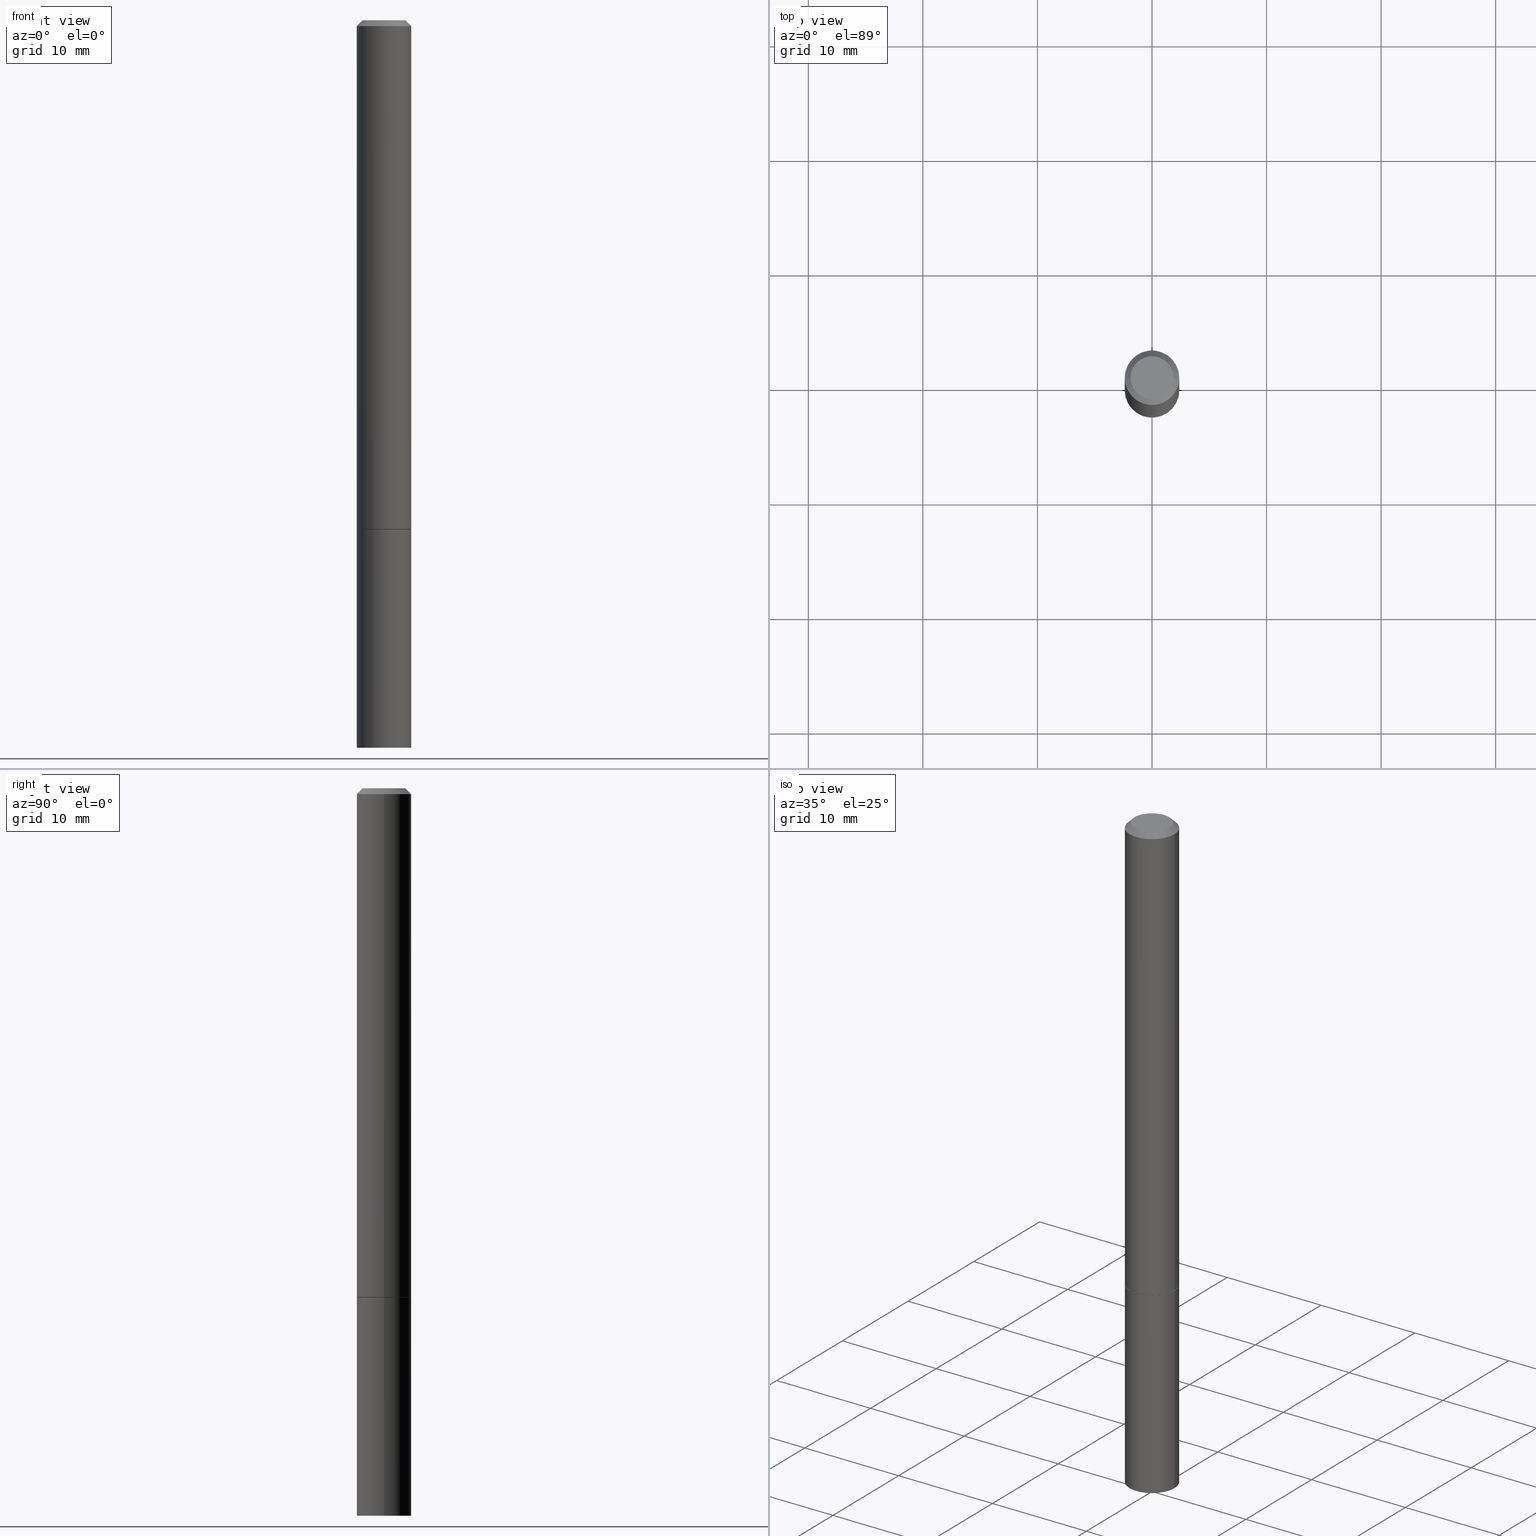
[diagram: canonical four-view strip — front | top / right | iso, engineering-drawing reading convention]
A machine part, canonical four-view strip (front | top / right | iso — engineering-drawing reading convention). The complete STEP part file that produces these views, byte-faithful:
ISO-10303-21;
HEADER;
FILE_DESCRIPTION (( 'STEP AP203' ),
    '1' );
FILE_NAME ('31748.STEP',
    '2023-03-21T20:30:02',
    ( '' ),
    ( '' ),
    'SwSTEP 2.0',
    'SolidWorks 2022',
    '' );
FILE_SCHEMA (( 'CONFIG_CONTROL_DESIGN' ));
ENDSEC;

DATA;
#1 = DIRECTION ( 'NONE',  ( -2.445468806185136597E-29, 3.491481338843145583E-15, 1.000000000000000000 ) ) ;
#2 = UNCERTAINTY_MEASURE_WITH_UNIT (LENGTH_MEASURE( 1.000000000000000082E-05 ), #125, 'distance_accuracy_value', 'NONE');
#3 = CIRCLE ( 'NONE', #142, 0.09375000000000001388 ) ;
#4 = LOCAL_TIME ( 16, 30, 2.000000000000000000, #368 ) ;
#5 = CONICAL_SURFACE ( 'NONE', #363, 751.2258538476485228, 1.518436449235072372 ) ;
#6 = CARTESIAN_POINT ( 'NONE',  ( 5.149934974793607105E-16, 0.07374999999999978795, -2.574967487396812920E-16 ) ) ;
#7 = EDGE_CURVE ( 'NONE', #52, #260, #253, .T. ) ;
#8 = LINE ( 'NONE', #119, #269 ) ;
#9 = CC_DESIGN_PERSON_AND_ORGANIZATION_ASSIGNMENT ( #370, #128, ( #81 ) ) ;
#10 = PERSON_AND_ORGANIZATION_ROLE ( 'design_owner' ) ;
#11 = CONICAL_SURFACE ( 'NONE', #234, 0.09374999999999975020, 0.7853981633974467247 ) ;
#12 = ADVANCED_FACE ( 'NONE', ( #316 ), #5, .F. ) ;
#13 = APPROVAL_STATUS ( 'not_yet_approved' ) ;
#14 = DIRECTION ( 'NONE',  ( 1.000000000000000000, -6.982962677686265922E-15, 4.876176775795935793E-29 ) ) ;
#15 = CALENDAR_DATE ( 2023, 21, 3 ) ;
#16 = CARTESIAN_POINT ( 'NONE',  ( 1.023799563225607519E-27, -1.461714441287113679E-13, -41.86516551084969961 ) ) ;
#17 = VERTEX_POINT ( 'NONE', #369 ) ;
#18 = DIRECTION ( 'NONE',  ( -2.445468806185136597E-29, 3.491481338843145583E-15, 1.000000000000000000 ) ) ;
#19 = CARTESIAN_POINT ( 'NONE',  ( 4.890937612370278413E-31, -6.982962677686297772E-17, -0.02000000000000002123 ) ) ;
#20 = MANIFOLD_SOLID_BREP ( 'Body-Move/Copy2[1]', #199 ) ;
#21 = ORIENTED_EDGE ( 'NONE', *, *, #107, .T. ) ;
#22 = CARTESIAN_POINT ( 'NONE',  ( 0.09374999999999984734, -9.371875034398942871E-15, -2.500000000000000000 ) ) ;
#23 = EDGE_LOOP ( 'NONE', ( #235, #319 ) ) ;
#24 = CARTESIAN_POINT ( 'NONE',  ( 0.000000000000000000, 0.000000000000000000, 0.000000000000000000 ) ) ;
#25 = AXIS2_PLACEMENT_3D ( 'NONE', #289, #104, #57 ) ;
#26 = ORIENTED_EDGE ( 'NONE', *, *, #186, .T. ) ;
#27 = CARTESIAN_POINT ( 'NONE',  ( 3.848130141995154331E-19, -8.711548898666276345E-15, -2.495086770692215516 ) ) ;
#28 = CC_DESIGN_PERSON_AND_ORGANIZATION_ASSIGNMENT ( #68, #280, ( #218 ) ) ;
#29 = CARTESIAN_POINT ( 'NONE',  ( -0.09374999999999975020, 5.848231242562228254E-16, -0.02000000000000002123 ) ) ;
#30 = CLOSED_SHELL ( 'NONE', ( #64, #82, #331, #180, #190, #216, #93, #366 ) ) ;
#31 = AXIS2_PLACEMENT_3D ( 'NONE', #210, #389, #236 ) ;
#32 = LINE ( 'NONE', #215, #111 ) ;
#33 = CIRCLE ( 'NONE', #41, 0.09374999999999975020 ) ;
#34 = APPROVAL_ROLE ( '' ) ;
#35 = PLANE ( 'NONE',  #224 ) ;
#36 = EDGE_CURVE ( 'NONE', #17, #264, #378, .T. ) ;
#37 = EDGE_CURVE ( 'NONE', #264, #295, #261, .T. ) ;
#38 = DATE_AND_TIME ( #155, #116 ) ;
#39 = DIRECTION ( 'NONE',  ( 2.438088387897960049E-29, -3.491481338843145188E-15, -1.000000000000000000 ) ) ;
#40 = APPROVAL_PERSON_ORGANIZATION ( #317, #168, #343 ) ;
#41 = AXIS2_PLACEMENT_3D ( 'NONE', #246, #217, #333 ) ;
#42 = CALENDAR_DATE ( 2023, 21, 3 ) ;
#43 = DIRECTION ( 'NONE',  ( -2.445468806185136877E-29, 3.491481338843145188E-15, 1.000000000000000000 ) ) ;
#44 = CALENDAR_DATE ( 2023, 21, 3 ) ;
#45 = DIRECTION ( 'NONE',  ( 1.000000000000000000, -6.982962677686272233E-15, 0.000000000000000000 ) ) ;
#46 = ORIENTED_EDGE ( 'NONE', *, *, #322, .F. ) ;
#47 = ORIENTED_EDGE ( 'NONE', *, *, #307, .T. ) ;
#48 = EDGE_LOOP ( 'NONE', ( #375, #192, #167, #50 ) ) ;
#49 = DIRECTION ( 'NONE',  ( -2.445468806185136877E-29, 3.491481338843145188E-15, 1.000000000000000000 ) ) ;
#50 = ORIENTED_EDGE ( 'NONE', *, *, #276, .F. ) ;
#51 = DIRECTION ( 'NONE',  ( 1.000000000000000000, -6.982962677686272233E-15, 0.000000000000000000 ) ) ;
#52 = VERTEX_POINT ( 'NONE', #342 ) ;
#53 = CARTESIAN_POINT ( 'NONE',  ( 4.890937612370278413E-31, -6.982962677686297772E-17, -0.02000000000000002123 ) ) ;
#54 = AXIS2_PLACEMENT_3D ( 'NONE', #383, #388, #198 ) ;
#55 = CARTESIAN_POINT ( 'NONE',  ( -0.09375000000000001388, -6.753264030266591277E-15, -1.750000000000000222 ) ) ;
#56 = AXIS2_PLACEMENT_3D ( 'NONE', #195, #99, #132 ) ;
#57 = DIRECTION ( 'NONE',  ( -1.000000000000000000, 6.982962677686266711E-15, 0.000000000000000000 ) ) ;
#58 = VERTEX_POINT ( 'NONE', #320 ) ;
#59 = DIRECTION ( 'NONE',  ( 1.000000000000000000, 0.000000000000000000, 0.000000000000000000 ) ) ;
#60 = ORIENTED_EDGE ( 'NONE', *, *, #186, .F. ) ;
#61 = LOCAL_TIME ( 16, 30, 2.000000000000000000, #225 ) ;
#62 = AXIS2_PLACEMENT_3D ( 'NONE', #390, #179, #214 ) ;
#63 = ADVANCED_FACE ( 'NONE', ( #100 ), #258, .F. ) ;
#64 = ADVANCED_FACE ( 'NONE', ( #312 ), #154, .T. ) ;
#65 = FACE_OUTER_BOUND ( 'NONE', #326, .T. ) ;
#66 = DIRECTION ( 'NONE',  ( -0.7071067811865232589, 7.493145998870265808E-15, 0.7071067811865715536 ) ) ;
#67 = APPLICATION_PROTOCOL_DEFINITION ( 'international standard', 'config_control_design', 1994, #310 ) ;
#68 = PERSON_AND_ORGANIZATION ( #251, #208 ) ;
#69 = ORIENTED_EDGE ( 'NONE', *, *, #130, .F. ) ;
#70 = SHAPE_DEFINITION_REPRESENTATION ( #337, #110 ) ;
#71 = VECTOR ( 'NONE', #332, 39.37007874015748143 ) ;
#72 = APPROVAL_STATUS ( 'not_yet_approved' ) ;
#73 = FACE_OUTER_BOUND ( 'NONE', #137, .T. ) ;
#74 = VERTEX_POINT ( 'NONE', #232 ) ;
#75 = EDGE_CURVE ( 'NONE', #133, #74, #256, .T. ) ;
#76 = DIRECTION ( 'NONE',  ( -2.445468806185136597E-29, 3.491481338843145583E-15, 1.000000000000000000 ) ) ;
#77 = LINE ( 'NONE', #173, #209 ) ;
#78 = EDGE_LOOP ( 'NONE', ( #106, #265, #372 ) ) ;
#79 = CIRCLE ( 'NONE', #306, 0.09375000000000001388 ) ;
#80 = CYLINDRICAL_SURFACE ( 'NONE', #174, 0.09374999999999988898 ) ;
#81 = PRODUCT_DEFINITION ( 'UNKNOWN', '', #226, #120 ) ;
#82 = ADVANCED_FACE ( 'NONE', ( #263 ), #223, .T. ) ;
#83 = ORIENTED_EDGE ( 'NONE', *, *, #252, .T. ) ;
#84 = DIRECTION ( 'NONE',  ( 1.000000000000000000, -6.982962677686266711E-15, 4.876176775795936914E-29 ) ) ;
#85 = CARTESIAN_POINT ( 'NONE',  ( 0.09375000000000001388, -6.546527510330875041E-16, 4.571415727308690506E-30 ) ) ;
#86 = CC_DESIGN_DATE_AND_TIME_ASSIGNMENT ( #134, #250, ( #81 ) ) ;
#87 = ORIENTED_EDGE ( 'NONE', *, *, #7, .T. ) ;
#88 = CONICAL_SURFACE ( 'NONE', #299, 0.09274999999999999911, 0.7853981633974141952 ) ;
#89 = APPROVAL_PERSON_ORGANIZATION ( #162, #335, #254 ) ;
#90 = CARTESIAN_POINT ( 'NONE',  ( 4.890937612370278413E-31, -6.982962677686297772E-17, -0.02000000000000002123 ) ) ;
#91 = AXIS2_PLACEMENT_3D ( 'NONE', #286, #352, #189 ) ;
#92 = CARTESIAN_POINT ( 'NONE',  ( 0.000000000000000000, 0.000000000000000000, 0.000000000000000000 ) ) ;
#93 = ADVANCED_FACE ( 'NONE', ( #73 ), #35, .F. ) ;
#94 = DATE_AND_TIME ( #346, #182 ) ;
#95 = CC_DESIGN_APPROVAL ( #275, ( #226 ) ) ;
#96 = DATE_AND_TIME ( #44, #4 ) ;
#97 = DIRECTION ( 'NONE',  ( -2.438088387897960049E-29, 3.491481338843145188E-15, 1.000000000000000000 ) ) ;
#98 = COORDINATED_UNIVERSAL_TIME_OFFSET ( 5, 0, .BEHIND. ) ;
#99 = DIRECTION ( 'NONE',  ( -2.445468806185136597E-29, 3.491481338843145583E-15, 1.000000000000000000 ) ) ;
#100 = FACE_OUTER_BOUND ( 'NONE', #23, .T. ) ;
#101 = AXIS2_PLACEMENT_3D ( 'NONE', #160, #39, #349 ) ;
#102 = CIRCLE ( 'NONE', #54, 0.09375000000000001388 ) ;
#103 = ORIENTED_EDGE ( 'NONE', *, *, #276, .T. ) ;
#104 = DIRECTION ( 'NONE',  ( 2.445468806185136597E-29, -3.491481338843145583E-15, -1.000000000000000000 ) ) ;
#105 = DIRECTION ( 'NONE',  ( -2.445468806185136597E-29, 3.491481338843145583E-15, 1.000000000000000000 ) ) ;
#106 = ORIENTED_EDGE ( 'NONE', *, *, #242, .F. ) ;
#107 = EDGE_CURVE ( 'NONE', #133, #196, #248, .T. ) ;
#108 = DIRECTION ( 'NONE',  ( 1.000000000000000000, -6.982962677686265133E-15, 4.876176775795935793E-29 ) ) ;
#109 = ORIENTED_EDGE ( 'NONE', *, *, #130, .T. ) ;
#110 = ADVANCED_BREP_SHAPE_REPRESENTATION ( '31748', ( #20, #279, #175 ), #136 ) ;
#111 = VECTOR ( 'NONE', #148, 39.37007874015748143 ) ;
#112 = CARTESIAN_POINT ( 'NONE',  ( 0.000000000000000000, 0.000000000000000000, 0.000000000000000000 ) ) ;
#113 = ORIENTED_EDGE ( 'NONE', *, *, #7, .F. ) ;
#114 = LINE ( 'NONE', #85, #191 ) ;
#115 = FACE_OUTER_BOUND ( 'NONE', #143, .T. ) ;
#116 = LOCAL_TIME ( 16, 30, 2.000000000000000000, #219 ) ;
#117 = CARTESIAN_POINT ( 'NONE',  ( 4.279570410823989044E-29, -6.110092342975505460E-15, -1.750000000000000222 ) ) ;
#118 = ORIENTED_EDGE ( 'NONE', *, *, #37, .F. ) ;
#119 = CARTESIAN_POINT ( 'NONE',  ( -0.09274999999999999911, -5.451063955558012544E-15, -1.750000000000000222 ) ) ;
#120 = DESIGN_CONTEXT ( 'detailed design', #310, 'design' ) ;
#121 = EDGE_CURVE ( 'NONE', #244, #17, #344, .T. ) ;
#122 = DIRECTION ( 'NONE',  ( -1.000000000000000000, 6.982962677686267499E-15, 0.000000000000000000 ) ) ;
#123 = VECTOR ( 'NONE', #230, 39.37007874015748854 ) ;
#124 = MECHANICAL_CONTEXT ( 'NONE', #360, 'mechanical' ) ;
#125 =( CONVERSION_BASED_UNIT ( 'INCH', #249 ) LENGTH_UNIT ( ) NAMED_UNIT ( #164 ) );
#126 = CYLINDRICAL_SURFACE ( 'NONE', #62, 0.09375000000000001388 ) ;
#127 = DATE_TIME_ROLE ( 'classification_date' ) ;
#128 = PERSON_AND_ORGANIZATION_ROLE ( 'creator' ) ;
#129 = PERSON_AND_ORGANIZATION_ROLE ( 'creator' ) ;
#130 = EDGE_CURVE ( 'NONE', #17, #181, #314, .T. ) ;
#131 = ADVANCED_FACE ( 'NONE', ( #281 ), #213, .F. ) ;
#132 = DIRECTION ( 'NONE',  ( 1.000000000000000000, -6.982962677686273021E-15, 0.000000000000000000 ) ) ;
#133 = VERTEX_POINT ( 'NONE', #171 ) ;
#134 = DATE_AND_TIME ( #42, #308 ) ;
#135 = DIRECTION ( 'NONE',  ( 0.7071067811865232589, -2.468850131082003836E-15, 0.7071067811865715536 ) ) ;
#136 =( GEOMETRIC_REPRESENTATION_CONTEXT ( 3 ) GLOBAL_UNCERTAINTY_ASSIGNED_CONTEXT ( ( #2 ) ) GLOBAL_UNIT_ASSIGNED_CONTEXT ( ( #125, #338, #309 ) ) REPRESENTATION_CONTEXT ( 'NONE', 'WORKASPACE' ) );
#137 = EDGE_LOOP ( 'NONE', ( #139, #172 ) ) ;
#138 = DIRECTION ( 'NONE',  ( 2.445468806185136597E-29, -3.491481338843145583E-15, -1.000000000000000000 ) ) ;
#139 = ORIENTED_EDGE ( 'NONE', *, *, #107, .F. ) ;
#140 = ORIENTED_EDGE ( 'NONE', *, *, #75, .T. ) ;
#141 = DIRECTION ( 'NONE',  ( -2.445468806185136597E-29, 3.491481338843145583E-15, 1.000000000000000000 ) ) ;
#142 = AXIS2_PLACEMENT_3D ( 'NONE', #298, #356, #51 ) ;
#143 = EDGE_LOOP ( 'NONE', ( #381, #355, #350, #245 ) ) ;
#144 = AXIS2_PLACEMENT_3D ( 'NONE', #380, #141, #301 ) ;
#145 = DIRECTION ( 'NONE',  ( 0.9986295347545742773, -7.033825938272001856E-15, -0.05233595624293820026 ) ) ;
#146 = FACE_OUTER_BOUND ( 'NONE', #292, .T. ) ;
#147 = EDGE_CURVE ( 'NONE', #358, #260, #296, .T. ) ;
#148 = DIRECTION ( 'NONE',  ( -2.445468806185136877E-29, 3.491481338843145188E-15, 1.000000000000000000 ) ) ;
#149 = EDGE_CURVE ( 'NONE', #358, #377, #345, .T. ) ;
#150 = EDGE_CURVE ( 'NONE', #295, #264, #102, .T. ) ;
#151 = CARTESIAN_POINT ( 'NONE',  ( 0.07374999999999978795, -6.094815207017957253E-16, 3.931526600461595245E-30 ) ) ;
#152 = VECTOR ( 'NONE', #145, 39.37007874015748854 ) ;
#153 = CC_DESIGN_APPROVAL ( #335, ( #81 ) ) ;
#154 = CONICAL_SURFACE ( 'NONE', #283, 0.09274999999999999911, 0.7853981633974141952 ) ;
#155 = CALENDAR_DATE ( 2023, 21, 3 ) ;
#156 = CARTESIAN_POINT ( 'NONE',  ( 4.279570410823989044E-29, -6.110092342975505460E-15, -1.750000000000000222 ) ) ;
#157 = CARTESIAN_POINT ( 'NONE',  ( 4.279570410823989044E-29, -6.110092342975505460E-15, -1.750000000000000222 ) ) ;
#158 = CIRCLE ( 'NONE', #144, 0.07374999999999978795 ) ;
#159 = PERSON_AND_ORGANIZATION ( #251, #208 ) ;
#160 = CARTESIAN_POINT ( 'NONE',  ( 6.546527510331302998E-16, 0.09374999999999389377, -1.750000000000000444 ) ) ;
#161 = ORIENTED_EDGE ( 'NONE', *, *, #387, .F. ) ;
#162 = PERSON_AND_ORGANIZATION ( #251, #208 ) ;
#163 = CARTESIAN_POINT ( 'NONE',  ( -0.09375000000000001388, 6.661338147750940229E-16, -4.611501647113973995E-30 ) ) ;
#164 = DIMENSIONAL_EXPONENTS ( 1.000000000000000000, 0.000000000000000000, 0.000000000000000000, 0.000000000000000000, 0.000000000000000000, 0.000000000000000000, 0.000000000000000000 ) ;
#165 = ORIENTED_EDGE ( 'NONE', *, *, #147, .F. ) ;
#166 = EDGE_LOOP ( 'NONE', ( #231, #385, #69 ) ) ;
#167 = ORIENTED_EDGE ( 'NONE', *, *, #294, .T. ) ;
#168 = APPROVAL ( #72, 'UNSPECIFIED' ) ;
#169 = DIRECTION ( 'NONE',  ( -2.445468806185136597E-29, 3.491481338843145583E-15, 1.000000000000000000 ) ) ;
#170 = ORIENTED_EDGE ( 'NONE', *, *, #294, .F. ) ;
#171 = CARTESIAN_POINT ( 'NONE',  ( 0.09274999999999999911, -6.757762131330906950E-15, -1.750000000000000222 ) ) ;
#172 = ORIENTED_EDGE ( 'NONE', *, *, #205, .F. ) ;
#173 = CARTESIAN_POINT ( 'NONE',  ( -0.09374999999999988898, 6.661338147750931354E-16, -4.611501647113968390E-30 ) ) ;
#174 = AXIS2_PLACEMENT_3D ( 'NONE', #24, #386, #108 ) ;
#175 = AXIS2_PLACEMENT_3D ( 'NONE', #92, #185, #59 ) ;
#176 = VECTOR ( 'NONE', #43, 39.37007874015748143 ) ;
#177 = LINE ( 'NONE', #29, #373 ) ;
#178 = ORIENTED_EDGE ( 'NONE', *, *, #149, .T. ) ;
#179 = DIRECTION ( 'NONE',  ( -2.445468806185136597E-29, 3.491481338843145583E-15, 1.000000000000000000 ) ) ;
#180 = ADVANCED_FACE ( 'NONE', ( #327 ), #315, .T. ) ;
#181 = VERTEX_POINT ( 'NONE', #22 ) ;
#182 = LOCAL_TIME ( 16, 30, 2.000000000000000000, #222 ) ;
#183 = CARTESIAN_POINT ( 'NONE',  ( 4.277124942017804562E-29, -6.106600861636661664E-15, -1.749000000000000110 ) ) ;
#184 = DIRECTION ( 'NONE',  ( -1.000000000000000000, 6.982962677686265922E-15, -4.876176775795935793E-29 ) ) ;
#185 = DIRECTION ( 'NONE',  ( 0.000000000000000000, 0.000000000000000000, 1.000000000000000000 ) ) ;
#186 = EDGE_CURVE ( 'NONE', #377, #358, #158, .T. ) ;
#187 = DIRECTION ( 'NONE',  ( 2.438088387897960049E-29, -3.491481338843145188E-15, -1.000000000000000000 ) ) ;
#188 = APPROVAL_STATUS ( 'not_yet_approved' ) ;
#189 = DIRECTION ( 'NONE',  ( 1.000000000000000000, -6.982962677686265133E-15, 4.876176775795935793E-29 ) ) ;
#190 = ADVANCED_FACE ( 'NONE', ( #146 ), #80, .T. ) ;
#191 = VECTOR ( 'NONE', #206, 39.37007874015748143 ) ;
#192 = ORIENTED_EDGE ( 'NONE', *, *, #147, .T. ) ;
#193 = ORIENTED_EDGE ( 'NONE', *, *, #322, .T. ) ;
#194 = PERSON_AND_ORGANIZATION_ROLE ( 'design_supplier' ) ;
#195 = CARTESIAN_POINT ( 'NONE',  ( 4.279570410823989044E-29, -6.110092342975505460E-15, -1.750000000000000222 ) ) ;
#196 = VERTEX_POINT ( 'NONE', #321 ) ;
#197 = CARTESIAN_POINT ( 'NONE',  ( -3.848130140774822525E-19, -8.711548898666276345E-15, -2.495086770692215516 ) ) ;
#198 = DIRECTION ( 'NONE',  ( 1.000000000000000000, -6.982962677686261189E-15, 0.000000000000000000 ) ) ;
#199 = CLOSED_SHELL ( 'NONE', ( #220, #12, #131, #351, #63 ) ) ;
#200 = DIRECTION ( 'NONE',  ( 1.000000000000000000, -6.982962677686265922E-15, 4.876176775795935793E-29 ) ) ;
#201 = EDGE_LOOP ( 'NONE', ( #229, #303, #170, #46 ) ) ;
#202 = LINE ( 'NONE', #27, #152 ) ;
#203 = PRODUCT ( '31748', '31748', '', ( #124 ) ) ;
#204 = EDGE_CURVE ( 'NONE', #58, #52, #77, .T. ) ;
#205 = EDGE_CURVE ( 'NONE', #196, #133, #267, .T. ) ;
#206 = DIRECTION ( 'NONE',  ( -2.445468806185136877E-29, 3.491481338843145188E-15, 1.000000000000000000 ) ) ;
#207 = AXIS2_PLACEMENT_3D ( 'NONE', #112, #300, #200 ) ;
#208 = ORGANIZATION ( 'UNSPECIFIED', 'UNSPECIFIED', '' ) ;
#209 = VECTOR ( 'NONE', #49, 39.37007874015748143 ) ;
#210 = CARTESIAN_POINT ( 'NONE',  ( 4.279570410823989044E-29, -6.110092342975505460E-15, -1.750000000000000222 ) ) ;
#211 = APPLICATION_PROTOCOL_DEFINITION ( 'international standard', 'config_control_design', 1994, #360 ) ;
#212 = CARTESIAN_POINT ( 'NONE',  ( 0.09375000000000001388, -6.764745094008592175E-15, -1.750000000000000222 ) ) ;
#213 = CONICAL_SURFACE ( 'NONE', #25, 751.2258538476485228, 1.518436449235072372 ) ;
#214 = DIRECTION ( 'NONE',  ( 1.000000000000000000, -6.982962677686265922E-15, 4.876176775795935793E-29 ) ) ;
#215 = CARTESIAN_POINT ( 'NONE',  ( 0.09374999999999988898, -6.546527510330866166E-16, 4.571415727308684201E-30 ) ) ;
#216 = ADVANCED_FACE ( 'NONE', ( #268 ), #88, .T. ) ;
#217 = DIRECTION ( 'NONE',  ( -2.445468806185136597E-29, 3.491481338843145583E-15, 1.000000000000000000 ) ) ;
#218 = SECURITY_CLASSIFICATION ( '', '', #285 ) ;
#219 = COORDINATED_UNIVERSAL_TIME_OFFSET ( 5, 0, .BEHIND. ) ;
#220 = ADVANCED_FACE ( 'NONE', ( #115 ), #293, .T. ) ;
#221 = EDGE_LOOP ( 'NONE', ( #165, #60, #103, #87 ) ) ;
#222 = COORDINATED_UNIVERSAL_TIME_OFFSET ( 5, 0, .BEHIND. ) ;
#223 = CYLINDRICAL_SURFACE ( 'NONE', #91, 0.09374999999999988898 ) ;
#224 = AXIS2_PLACEMENT_3D ( 'NONE', #156, #97, #14 ) ;
#225 = COORDINATED_UNIVERSAL_TIME_OFFSET ( 5, 0, .BEHIND. ) ;
#226 = PRODUCT_DEFINITION_FORMATION_WITH_SPECIFIED_SOURCE ( 'ANY', '', #203, .NOT_KNOWN. ) ;
#227 = DIRECTION ( 'NONE',  ( 1.000000000000000000, -6.982962677686261189E-15, 0.000000000000000000 ) ) ;
#228 = VECTOR ( 'NONE', #135, 39.37007874015748854 ) ;
#229 = ORIENTED_EDGE ( 'NONE', *, *, #302, .T. ) ;
#230 = DIRECTION ( 'NONE',  ( -0.9986295347545742773, 6.790662755453662155E-15, -0.05233595624293820026 ) ) ;
#231 = ORIENTED_EDGE ( 'NONE', *, *, #121, .F. ) ;
#232 = CARTESIAN_POINT ( 'NONE',  ( 0.09375000000000001388, -6.761253612669749168E-15, -1.749000000000000110 ) ) ;
#233 = DIRECTION ( 'NONE',  ( -2.445468806185136597E-29, 3.491481338843145583E-15, 1.000000000000000000 ) ) ;
#234 = AXIS2_PLACEMENT_3D ( 'NONE', #90, #274, #122 ) ;
#235 = ORIENTED_EDGE ( 'NONE', *, *, #150, .T. ) ;
#236 = DIRECTION ( 'NONE',  ( 1.000000000000000000, -6.982962677686273021E-15, 0.000000000000000000 ) ) ;
#237 = EDGE_CURVE ( 'NONE', #181, #17, #3, .T. ) ;
#238 = ORIENTED_EDGE ( 'NONE', *, *, #302, .F. ) ;
#239 = PRODUCT_RELATED_PRODUCT_CATEGORY ( 'detail', '', ( #203 ) ) ;
#240 = CARTESIAN_POINT ( 'NONE',  ( 0.000000000000000000, 0.000000000000000000, 0.000000000000000000 ) ) ;
#241 = DIRECTION ( 'NONE',  ( -1.000000000000000000, 6.982962677686267499E-15, 0.000000000000000000 ) ) ;
#242 = EDGE_CURVE ( 'NONE', #244, #181, #202, .T. ) ;
#243 = CC_DESIGN_DATE_AND_TIME_ASSIGNMENT ( #94, #127, ( #218 ) ) ;
#244 = VERTEX_POINT ( 'NONE', #271 ) ;
#245 = ORIENTED_EDGE ( 'NONE', *, *, #252, .F. ) ;
#246 = CARTESIAN_POINT ( 'NONE',  ( 4.890937612370278413E-31, -6.982962677686297772E-17, -0.02000000000000002123 ) ) ;
#247 = CARTESIAN_POINT ( 'NONE',  ( 4.277124942017804562E-29, -6.106600861636661664E-15, -1.749000000000000110 ) ) ;
#248 = CIRCLE ( 'NONE', #56, 0.09274999999999999911 ) ;
#249 = LENGTH_MEASURE_WITH_UNIT ( LENGTH_MEASURE( 0.02539999999999999897 ), #359 );
#250 = DATE_TIME_ROLE ( 'creation_date' ) ;
#251 = PERSON ( 'UNSPECIFIED', 'UNSPECIFIED', 'UNSPECIFIED', ('UNSPECIFIED'), ('UNSPECIFIED'), ('UNSPECIFIED') ) ;
#252 = EDGE_CURVE ( 'NONE', #181, #295, #114, .T. ) ;
#253 = CIRCLE ( 'NONE', #305, 0.09374999999999975020 ) ;
#254 = APPROVAL_ROLE ( '' ) ;
#255 = AXIS2_PLACEMENT_3D ( 'NONE', #247, #365, #304 ) ;
#256 = LINE ( 'NONE', #284, #228 ) ;
#257 = DATE_AND_TIME ( #15, #61 ) ;
#258 = PLANE ( 'NONE',  #101 ) ;
#259 = CARTESIAN_POINT ( 'NONE',  ( 6.113672015462842613E-29, -8.728703347107864943E-15, -2.500000000000000000 ) ) ;
#260 = VERTEX_POINT ( 'NONE', #329 ) ;
#261 = CIRCLE ( 'NONE', #330, 0.09375000000000001388 ) ;
#262 = APPROVAL_DATE_TIME ( #96, #168 ) ;
#263 = FACE_OUTER_BOUND ( 'NONE', #201, .T. ) ;
#264 = VERTEX_POINT ( 'NONE', #55 ) ;
#265 = ORIENTED_EDGE ( 'NONE', *, *, #121, .T. ) ;
#266 = CC_DESIGN_PERSON_AND_ORGANIZATION_ASSIGNMENT ( #341, #10, ( #203 ) ) ;
#267 = CIRCLE ( 'NONE', #31, 0.09274999999999999911 ) ;
#268 = FACE_OUTER_BOUND ( 'NONE', #379, .T. ) ;
#269 = VECTOR ( 'NONE', #66, 39.37007874015748854 ) ;
#270 = EDGE_LOOP ( 'NONE', ( #21, #297, #238, #323 ) ) ;
#271 = CARTESIAN_POINT ( 'NONE',  ( 6.101388152961457474E-29, -8.711933711680414606E-15, -2.495086770692215516 ) ) ;
#272 = CARTESIAN_POINT ( 'NONE',  ( 0.09374999999999975020, -7.130013140679423114E-16, -0.02000000000000002123 ) ) ;
#273 = CC_DESIGN_SECURITY_CLASSIFICATION ( #218, ( #226 ) ) ;
#274 = DIRECTION ( 'NONE',  ( 2.445468806185136597E-29, -3.491481338843145583E-15, -1.000000000000000000 ) ) ;
#275 = APPROVAL ( #188, 'UNSPECIFIED' ) ;
#276 = EDGE_CURVE ( 'NONE', #377, #52, #177, .T. ) ;
#277 = AXIS2_PLACEMENT_3D ( 'NONE', #240, #233, #84 ) ;
#278 = DIRECTION ( 'NONE',  ( 1.000000000000000000, -6.982962677686261189E-15, 0.000000000000000000 ) ) ;
#279 = MANIFOLD_SOLID_BREP ( 'Body-Move/Copy2[2]', #30 ) ;
#280 = PERSON_AND_ORGANIZATION_ROLE ( 'classification_officer' ) ;
#281 = FACE_OUTER_BOUND ( 'NONE', #78, .T. ) ;
#282 = APPROVAL_DATE_TIME ( #38, #275 ) ;
#283 = AXIS2_PLACEMENT_3D ( 'NONE', #157, #76, #347 ) ;
#284 = CARTESIAN_POINT ( 'NONE',  ( 0.09274999999999999911, -6.757762131330906950E-15, -1.750000000000000222 ) ) ;
#285 = SECURITY_CLASSIFICATION_LEVEL ( 'unclassified' ) ;
#286 = CARTESIAN_POINT ( 'NONE',  ( 0.000000000000000000, 0.000000000000000000, 0.000000000000000000 ) ) ;
#287 = ORIENTED_EDGE ( 'NONE', *, *, #204, .F. ) ;
#288 = APPROVAL_DATE_TIME ( #257, #335 ) ;
#289 = CARTESIAN_POINT ( 'NONE',  ( 1.023799563225607519E-27, -1.461714441287113679E-13, -41.86516551084969961 ) ) ;
#290 = ORIENTED_EDGE ( 'NONE', *, *, #36, .F. ) ;
#291 = ORIENTED_EDGE ( 'NONE', *, *, #205, .T. ) ;
#292 = EDGE_LOOP ( 'NONE', ( #287, #47, #193, #113 ) ) ;
#293 = CYLINDRICAL_SURFACE ( 'NONE', #207, 0.09375000000000001388 ) ;
#294 = EDGE_CURVE ( 'NONE', #260, #52, #33, .T. ) ;
#295 = VERTEX_POINT ( 'NONE', #212 ) ;
#296 = LINE ( 'NONE', #272, #71 ) ;
#297 = ORIENTED_EDGE ( 'NONE', *, *, #387, .T. ) ;
#298 = CARTESIAN_POINT ( 'NONE',  ( 6.113672015462842613E-29, -8.728703347107864943E-15, -2.500000000000000000 ) ) ;
#299 = AXIS2_PLACEMENT_3D ( 'NONE', #117, #169, #354 ) ;
#300 = DIRECTION ( 'NONE',  ( -2.445468806185136597E-29, 3.491481338843145583E-15, 1.000000000000000000 ) ) ;
#301 = DIRECTION ( 'NONE',  ( 1.000000000000000000, -6.982962677686266711E-15, 4.876176775795936914E-29 ) ) ;
#302 = EDGE_CURVE ( 'NONE', #74, #58, #364, .T. ) ;
#303 = ORIENTED_EDGE ( 'NONE', *, *, #204, .T. ) ;
#304 = DIRECTION ( 'NONE',  ( 1.000000000000000000, -6.982962677686261189E-15, 0.000000000000000000 ) ) ;
#305 = AXIS2_PLACEMENT_3D ( 'NONE', #19, #18, #313 ) ;
#306 = AXIS2_PLACEMENT_3D ( 'NONE', #183, #1, #278 ) ;
#307 = EDGE_CURVE ( 'NONE', #58, #74, #79, .T. ) ;
#308 = LOCAL_TIME ( 16, 30, 2.000000000000000000, #98 ) ;
#309 =( NAMED_UNIT ( * ) SI_UNIT ( $, .STERADIAN. ) SOLID_ANGLE_UNIT ( ) );
#310 = APPLICATION_CONTEXT ( 'configuration controlled 3d designs of mechanical parts and assemblies' ) ;
#311 = PERSON_AND_ORGANIZATION ( #251, #208 ) ;
#312 = FACE_OUTER_BOUND ( 'NONE', #270, .T. ) ;
#313 = DIRECTION ( 'NONE',  ( 1.000000000000000000, -6.982962677686267499E-15, 0.000000000000000000 ) ) ;
#314 = CIRCLE ( 'NONE', #384, 0.09375000000000001388 ) ;
#315 = CONICAL_SURFACE ( 'NONE', #328, 0.09374999999999975020, 0.7853981633974467247 ) ;
#316 = FACE_OUTER_BOUND ( 'NONE', #166, .T. ) ;
#317 = PERSON_AND_ORGANIZATION ( #251, #208 ) ;
#318 = DIRECTION ( 'NONE',  ( -2.445468806185136597E-29, 3.491481338843145583E-15, 1.000000000000000000 ) ) ;
#319 = ORIENTED_EDGE ( 'NONE', *, *, #37, .T. ) ;
#320 = CARTESIAN_POINT ( 'NONE',  ( -0.09375000000000001388, -2.422081429431664218E-15, -1.749000000000000110 ) ) ;
#321 = CARTESIAN_POINT ( 'NONE',  ( -0.09274999999999999911, -5.445765501209790142E-15, -1.750000000000000222 ) ) ;
#322 = EDGE_CURVE ( 'NONE', #74, #260, #32, .T. ) ;
#323 = ORIENTED_EDGE ( 'NONE', *, *, #75, .F. ) ;
#324 = DIRECTION ( 'NONE',  ( 2.445468806185136597E-29, -3.491481338843145583E-15, -1.000000000000000000 ) ) ;
#325 = ORIENTED_EDGE ( 'NONE', *, *, #307, .F. ) ;
#326 = EDGE_LOOP ( 'NONE', ( #290, #109, #83, #118 ) ) ;
#327 = FACE_OUTER_BOUND ( 'NONE', #221, .T. ) ;
#328 = AXIS2_PLACEMENT_3D ( 'NONE', #53, #324, #241 ) ;
#329 = CARTESIAN_POINT ( 'NONE',  ( 0.09374999999999975020, -7.130013140679423114E-16, -0.02000000000000002123 ) ) ;
#330 = AXIS2_PLACEMENT_3D ( 'NONE', #371, #105, #227 ) ;
#331 = ADVANCED_FACE ( 'NONE', ( #362 ), #11, .T. ) ;
#332 = DIRECTION ( 'NONE',  ( 0.7071067811865464625, -7.319954787623252890E-15, -0.7071067811865486830 ) ) ;
#333 = DIRECTION ( 'NONE',  ( 1.000000000000000000, -6.982962677686267499E-15, 0.000000000000000000 ) ) ;
#334 = PLANE ( 'NONE',  #336 ) ;
#335 = APPROVAL ( #13, 'UNSPECIFIED' ) ;
#336 = AXIS2_PLACEMENT_3D ( 'NONE', #6, #187, #184 ) ;
#337 = PRODUCT_DEFINITION_SHAPE ( 'NONE', 'NONE',  #81 ) ;
#338 =( NAMED_UNIT ( * ) PLANE_ANGLE_UNIT ( ) SI_UNIT ( $, .RADIAN. ) );
#339 = CARTESIAN_POINT ( 'NONE',  ( -0.07374999999999978795, 5.499083108677917680E-16, -3.723527850031183460E-30 ) ) ;
#340 = DIRECTION ( 'NONE',  ( -0.7071067811865464625, 2.468850131082245228E-15, -0.7071067811865486830 ) ) ;
#341 = PERSON_AND_ORGANIZATION ( #251, #208 ) ;
#342 = CARTESIAN_POINT ( 'NONE',  ( -0.09374999999999975020, 5.848231242562228254E-16, -0.02000000000000002123 ) ) ;
#343 = APPROVAL_ROLE ( '' ) ;
#344 = LINE ( 'NONE', #197, #123 ) ;
#345 = CIRCLE ( 'NONE', #277, 0.07374999999999978795 ) ;
#346 = CALENDAR_DATE ( 2023, 21, 3 ) ;
#347 = DIRECTION ( 'NONE',  ( 1.000000000000000000, -6.982962677686273021E-15, 0.000000000000000000 ) ) ;
#348 = EDGE_LOOP ( 'NONE', ( #26, #178 ) ) ;
#349 = DIRECTION ( 'NONE',  ( -1.000000000000000000, 6.982962677686265922E-15, -4.876176775795935793E-29 ) ) ;
#350 = ORIENTED_EDGE ( 'NONE', *, *, #150, .F. ) ;
#351 = ADVANCED_FACE ( 'NONE', ( #65 ), #126, .T. ) ;
#352 = DIRECTION ( 'NONE',  ( -2.445468806185136597E-29, 3.491481338843145583E-15, 1.000000000000000000 ) ) ;
#353 = APPROVAL_PERSON_ORGANIZATION ( #311, #275, #34 ) ;
#354 = DIRECTION ( 'NONE',  ( 1.000000000000000000, -6.982962677686273021E-15, 0.000000000000000000 ) ) ;
#355 = ORIENTED_EDGE ( 'NONE', *, *, #36, .T. ) ;
#356 = DIRECTION ( 'NONE',  ( -2.445468806185136597E-29, 3.491481338843145583E-15, 1.000000000000000000 ) ) ;
#357 = CC_DESIGN_PERSON_AND_ORGANIZATION_ASSIGNMENT ( #367, #194, ( #226 ) ) ;
#358 = VERTEX_POINT ( 'NONE', #151 ) ;
#359 =( LENGTH_UNIT ( ) NAMED_UNIT ( * ) SI_UNIT ( $, .METRE. ) );
#360 = APPLICATION_CONTEXT ( 'configuration controlled 3d designs of mechanical parts and assemblies' ) ;
#361 = FACE_OUTER_BOUND ( 'NONE', #348, .T. ) ;
#362 = FACE_OUTER_BOUND ( 'NONE', #48, .T. ) ;
#363 = AXIS2_PLACEMENT_3D ( 'NONE', #16, #138, #376 ) ;
#364 = CIRCLE ( 'NONE', #255, 0.09375000000000001388 ) ;
#365 = DIRECTION ( 'NONE',  ( -2.445468806185136597E-29, 3.491481338843145583E-15, 1.000000000000000000 ) ) ;
#366 = ADVANCED_FACE ( 'NONE', ( #361 ), #334, .F. ) ;
#367 = PERSON_AND_ORGANIZATION ( #251, #208 ) ;
#368 = COORDINATED_UNIVERSAL_TIME_OFFSET ( 5, 0, .BEHIND. ) ;
#369 = CARTESIAN_POINT ( 'NONE',  ( -0.09374999999999984734, -8.074050596074776650E-15, -2.500000000000000000 ) ) ;
#370 = PERSON_AND_ORGANIZATION ( #251, #208 ) ;
#371 = CARTESIAN_POINT ( 'NONE',  ( 4.279570410823989044E-29, -6.110092342975505460E-15, -1.750000000000000222 ) ) ;
#372 = ORIENTED_EDGE ( 'NONE', *, *, #237, .F. ) ;
#373 = VECTOR ( 'NONE', #340, 39.37007874015748143 ) ;
#374 = CC_DESIGN_APPROVAL ( #168, ( #218 ) ) ;
#375 = ORIENTED_EDGE ( 'NONE', *, *, #149, .F. ) ;
#376 = DIRECTION ( 'NONE',  ( -1.000000000000000000, 6.982962677686266711E-15, 0.000000000000000000 ) ) ;
#377 = VERTEX_POINT ( 'NONE', #339 ) ;
#378 = LINE ( 'NONE', #163, #176 ) ;
#379 = EDGE_LOOP ( 'NONE', ( #161, #291, #140, #325 ) ) ;
#380 = CARTESIAN_POINT ( 'NONE',  ( 0.000000000000000000, 0.000000000000000000, 0.000000000000000000 ) ) ;
#381 = ORIENTED_EDGE ( 'NONE', *, *, #237, .T. ) ;
#382 = CC_DESIGN_PERSON_AND_ORGANIZATION_ASSIGNMENT ( #159, #129, ( #226 ) ) ;
#383 = CARTESIAN_POINT ( 'NONE',  ( 4.279570410823989044E-29, -6.110092342975505460E-15, -1.750000000000000222 ) ) ;
#384 = AXIS2_PLACEMENT_3D ( 'NONE', #259, #318, #45 ) ;
#385 = ORIENTED_EDGE ( 'NONE', *, *, #242, .T. ) ;
#386 = DIRECTION ( 'NONE',  ( -2.445468806185136597E-29, 3.491481338843145583E-15, 1.000000000000000000 ) ) ;
#387 = EDGE_CURVE ( 'NONE', #196, #58, #8, .T. ) ;
#388 = DIRECTION ( 'NONE',  ( -2.445468806185136597E-29, 3.491481338843145583E-15, 1.000000000000000000 ) ) ;
#389 = DIRECTION ( 'NONE',  ( -2.445468806185136597E-29, 3.491481338843145583E-15, 1.000000000000000000 ) ) ;
#390 = CARTESIAN_POINT ( 'NONE',  ( 0.000000000000000000, 0.000000000000000000, 0.000000000000000000 ) ) ;
ENDSEC;
END-ISO-10303-21;
